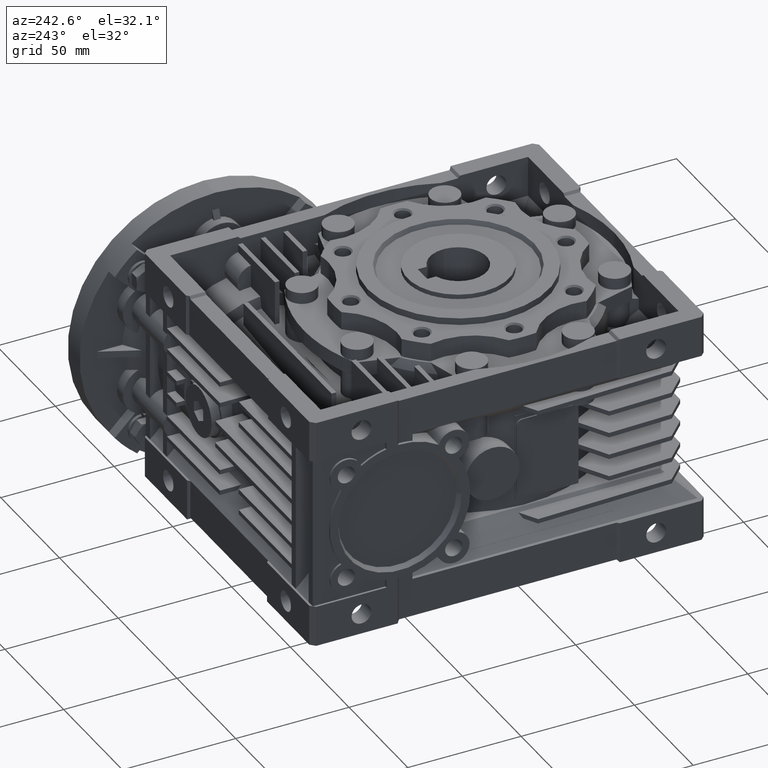
[diagram: clean part render]
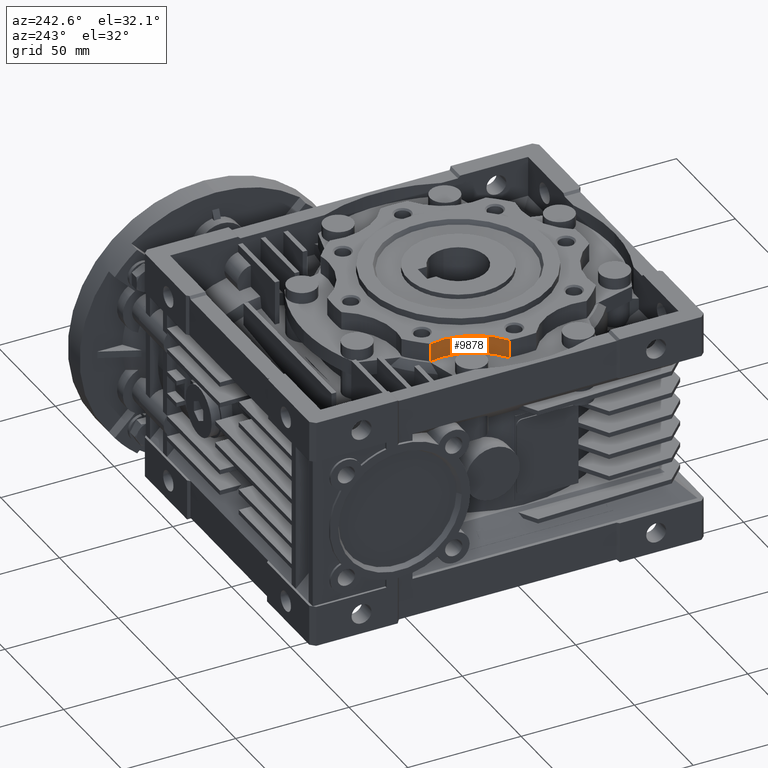
[diagram: same view with one face highlighted and labeled with its STEP entity id]
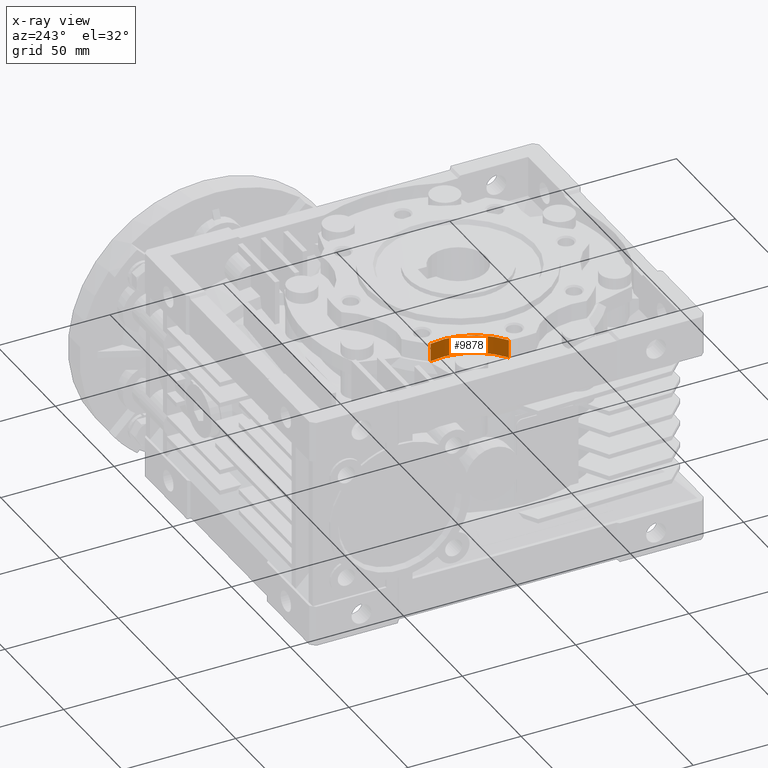
[diagram: x-ray of the same camera — body ghosted, the highlighted face saturated]
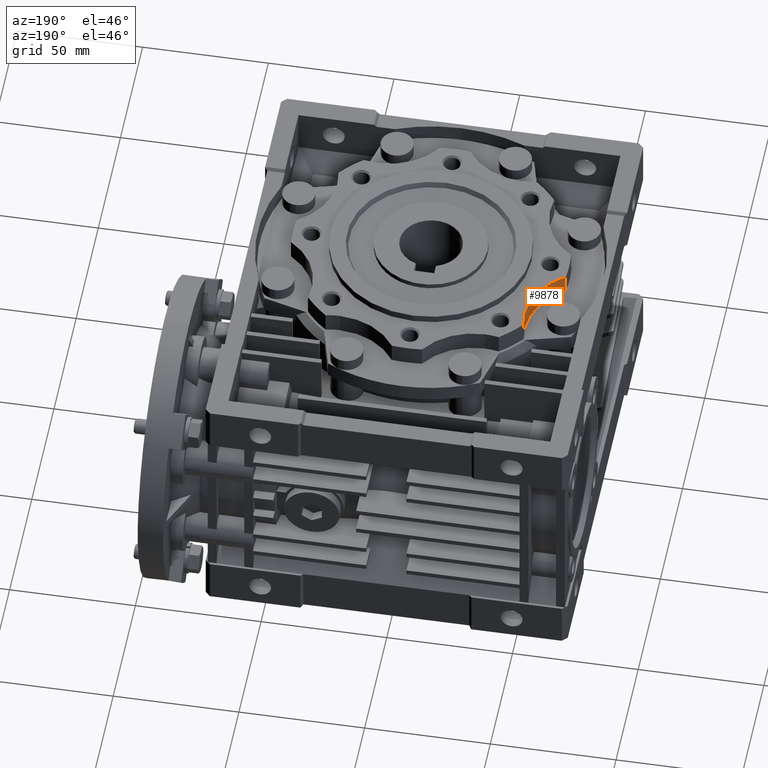
[diagram: same view with one face highlighted and labeled with its STEP entity id]
A machine part, auxiliary view. The second image highlights one B-rep face of the part: STEP entity #9878.
The next image is the same camera in x-ray: the body ghosted, the highlighted face saturated — about 0% of this face is hidden behind the body in this view.
A second angle (auxiliary view) of the same face is appended — the face is thin or edge-on in the first view.
In plain terms, the highlighted cylindrical surface (partial cylindrical patch) has radius 27 mm, axis along (0, 0, -1).
Its self-contained STEP definition (entity closure, byte-faithful):
#1771 = CIRCLE ( 'NONE', #21987, 27.00000000000000000 ) ;
#1970 = AXIS2_PLACEMENT_3D ( 'NONE', #5717, #23562, #2208 ) ;
#2208 = DIRECTION ( 'NONE',  ( 0.000000000000000000, -1.000000000000000000, 0.000000000000000000 ) ) ;
#4905 = EDGE_CURVE ( 'NONE', #31669, #7599, #1771, .T. ) ;
#5717 = CARTESIAN_POINT ( 'NONE',  ( -69.29096493834650516, 28.70125742738170160, 45.00000000000000000 ) ) ;
#7599 = VERTEX_POINT ( 'NONE', #38535 ) ;
#8951 = EDGE_CURVE ( 'NONE', #42031, #7599, #13240, .T. ) ;
#9351 = ORIENTED_EDGE ( 'NONE', *, *, #4905, .T. ) ;
#9878 = ADVANCED_FACE ( 'NONE', ( #37894 ), #41648, .F. ) ;
#11470 = CARTESIAN_POINT ( 'NONE',  ( -42.90242775894350302, 34.41484697610369636, 45.00000000000000000 ) ) ;
#11832 = DIRECTION ( 'NONE',  ( 0.000000000000000000, 0.000000000000000000, 1.000000000000000000 ) ) ;
#12933 = CARTESIAN_POINT ( 'NONE',  ( -69.29096493834650516, 28.70125742738170160, 53.00000000000000000 ) ) ;
#13240 = LINE ( 'NONE', #20820, #30566 ) ;
#15277 = VECTOR ( 'NONE', #27149, 1000.000000000000000 ) ;
#15369 = CARTESIAN_POINT ( 'NONE',  ( -69.29096493834650516, 28.70125742738170160, 45.00000000000000000 ) ) ;
#16497 = DIRECTION ( 'NONE',  ( 0.000000000000000000, 0.000000000000000000, 1.000000000000000000 ) ) ;
#18738 = CARTESIAN_POINT ( 'NONE',  ( -54.67156926801519745, 6.001625927414619532, 45.00000000000000000 ) ) ;
#20820 = CARTESIAN_POINT ( 'NONE',  ( -42.90242775894350302, 34.41484697610369636, -56.00000000000000000 ) ) ;
#21987 = AXIS2_PLACEMENT_3D ( 'NONE', #12933, #16497, #41164 ) ;
#22337 = CIRCLE ( 'NONE', #46377, 27.00000000000000000 ) ;
#22680 = CARTESIAN_POINT ( 'NONE',  ( -54.67156926801519745, 6.001625927414639960, -56.00000000000000000 ) ) ;
#23562 = DIRECTION ( 'NONE',  ( 0.000000000000000000, 0.000000000000000000, -1.000000000000000000 ) ) ;
#24686 = EDGE_CURVE ( 'NONE', #25697, #42031, #22337, .T. ) ;
#25036 = ORIENTED_EDGE ( 'NONE', *, *, #8951, .F. ) ;
#25697 = VERTEX_POINT ( 'NONE', #18738 ) ;
#27149 = DIRECTION ( 'NONE',  ( 0.000000000000000000, 0.000000000000000000, -1.000000000000000000 ) ) ;
#30566 = VECTOR ( 'NONE', #35147, 1000.000000000000000 ) ;
#31229 = EDGE_CURVE ( 'NONE', #31669, #25697, #41724, .T. ) ;
#31669 = VERTEX_POINT ( 'NONE', #34995 ) ;
#33471 = DIRECTION ( 'NONE',  ( 0.000000000000000000, -1.000000000000000000, 0.000000000000000000 ) ) ;
#34183 = ORIENTED_EDGE ( 'NONE', *, *, #31229, .F. ) ;
#34995 = CARTESIAN_POINT ( 'NONE',  ( -54.67156926801519745, 6.001625927414619532, 53.00000000000000000 ) ) ;
#35147 = DIRECTION ( 'NONE',  ( 0.000000000000000000, 0.000000000000000000, 1.000000000000000000 ) ) ;
#37894 = FACE_OUTER_BOUND ( 'NONE', #43101, .T. ) ;
#38482 = ORIENTED_EDGE ( 'NONE', *, *, #24686, .F. ) ;
#38535 = CARTESIAN_POINT ( 'NONE',  ( -42.90242775894350302, 34.41484697610369636, 53.00000000000000000 ) ) ;
#41164 = DIRECTION ( 'NONE',  ( 0.000000000000000000, -1.000000000000000000, 0.000000000000000000 ) ) ;
#41648 = CYLINDRICAL_SURFACE ( 'NONE', #1970, 27.00000000000000000 ) ;
#41724 = LINE ( 'NONE', #22680, #15277 ) ;
#42031 = VERTEX_POINT ( 'NONE', #11470 ) ;
#43101 = EDGE_LOOP ( 'NONE', ( #25036, #38482, #34183, #9351 ) ) ;
#46377 = AXIS2_PLACEMENT_3D ( 'NONE', #15369, #11832, #33471 ) ;